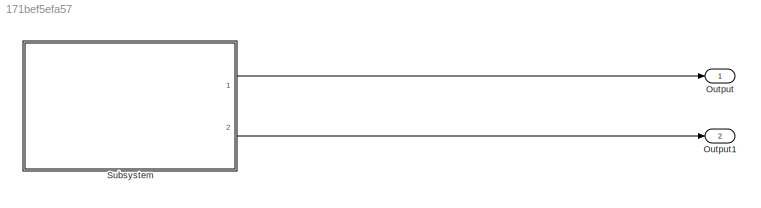
MODEL slx_171bef5efa57
KIND model
CONFIG AbsTol = auto
CONFIG EnableMultiTasking = off
CONFIG FixedStep = 0.25
CONFIG MaxStep = 4000.0
CONFIG MinStep = auto
CONFIG RelTol = 1e-3
CONFIG SampleTimeConstraint = Unconstrained
CONFIG Solver = FixedStepAuto
CONFIG SolverName = FixedStepAuto
CONFIG StartTime = 0.0
CONFIG StopTime = 7000
BLOCK [Outport] Output
  IconDisplay = Port number
  SignalName = SatVel_J2000
BLOCK [Outport] Output1
  IconDisplay = Port number
  Port = 2
  SignalName = SatPos_J2000
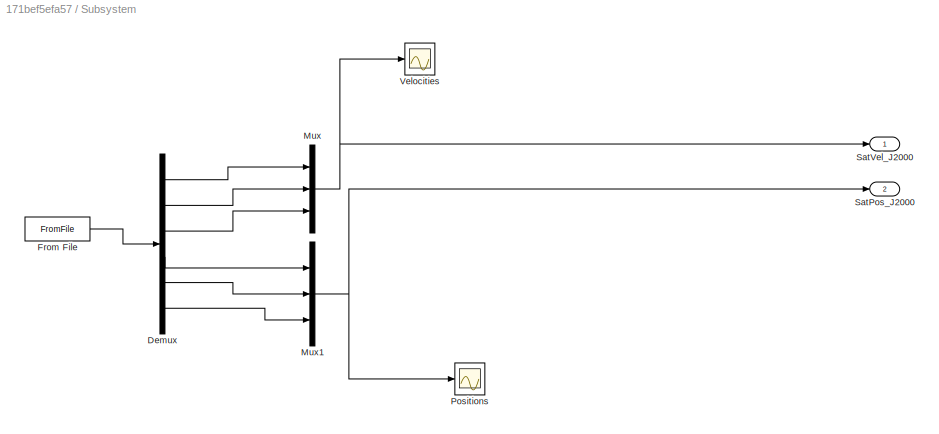
BLOCK [SubSystem] Subsystem
  Ports = [0, 2]
  RequestExecContextInheritance = off
BLOCK [Demux] Subsystem/Demux
  DisplayOption = bar
  Outputs = 6
  Ports = [1, 6]
BLOCK [FromFile] Subsystem/From File
  ExtrapolationAfterLastDataPoint = Hold last value
  ExtrapolationBeforeFirstDataPoint = Hold first value
  FileName = <userpath>\Documents\TOLOSAT\tolosat_adcs\pythondev\positions\timestamped_file.mat
  InterpolationWithinTimeRange = Zero order hold
BLOCK [Mux] Subsystem/Mux
  DisplayOption = bar
  Inputs = 3
  Ports = [3, 1]
BLOCK [Mux] Subsystem/Mux1
  DisplayOption = bar
  Inputs = 3
  Ports = [3, 1]
BLOCK [Scope] Subsystem/Positions
  Floating = off
  NumInputPorts = 1
  Ports = [1]
  ScopeSpecificationString = Simulink.scopes.TimeScopeBlockCfg('CurrentConfiguration', extmgr.ConfigurationSet(extmgr.Configuration('Core','General UI',true),extmgr.Configuration('Core','Source UI',true),extmgr.Configuration('Sources','WiredSimulink',true),extmgr.Configuration('Visuals','Time Domain',true,'SerializedDisplays',{struct('MinYLimReal','-8464.14025','MaxYLimReal','8468.18085','YLabelReal','','MinYLimMag','  0.0000...<+1397ch>
BLOCK [Outport] Subsystem/SatPos_J2000
  IconDisplay = Port number
  Port = 2
BLOCK [Outport] Subsystem/SatVel_J2000
  IconDisplay = Port number
BLOCK [Scope] Subsystem/Velocities
  Floating = off
  NumInputPorts = 1
  Ports = [1]
  ScopeSpecificationString = Simulink.scopes.TimeScopeBlockCfg('CurrentConfiguration', extmgr.ConfigurationSet(extmgr.Configuration('Core','General UI',true),extmgr.Configuration('Core','Source UI',true),extmgr.Configuration('Sources','WiredSimulink',true,'DataLoggingVariableName','ScopeData1'),extmgr.Configuration('Visuals','Time Domain',true,'SerializedDisplays',{struct('MinYLimReal','-9.58771','MaxYLimReal','9.58781','YLab...<+1414ch>
LINE Subsystem/Demux:1 -> Subsystem/Mux:1
LINE Subsystem/Demux:2 -> Subsystem/Mux:2
LINE Subsystem/Demux:3 -> Subsystem/Mux:3
LINE Subsystem/Demux:4 -> Subsystem/Mux1:1
LINE Subsystem/Demux:5 -> Subsystem/Mux1:2
LINE Subsystem/Demux:6 -> Subsystem/Mux1:3
LINE Subsystem/From File:1 -> Subsystem/Demux:1
NET Subsystem/Mux1:1 -> Subsystem/Positions:1, Subsystem/SatPos_J2000:1
NET Subsystem/Mux:1 -> Subsystem/SatVel_J2000:1, Subsystem/Velocities:1
LINE Subsystem:1 -> Output:1
LINE Subsystem:2 -> Output1:1
note: NET lines group one-source signal fan-out (src -> all destinations, sorted); 1:1 wires keep LINE
